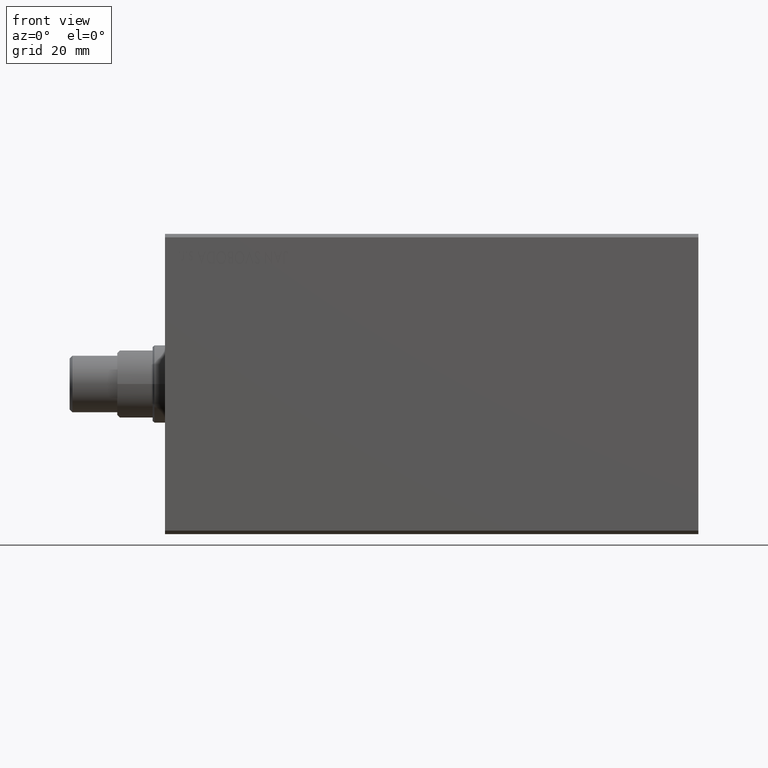
[diagram: clean part render]
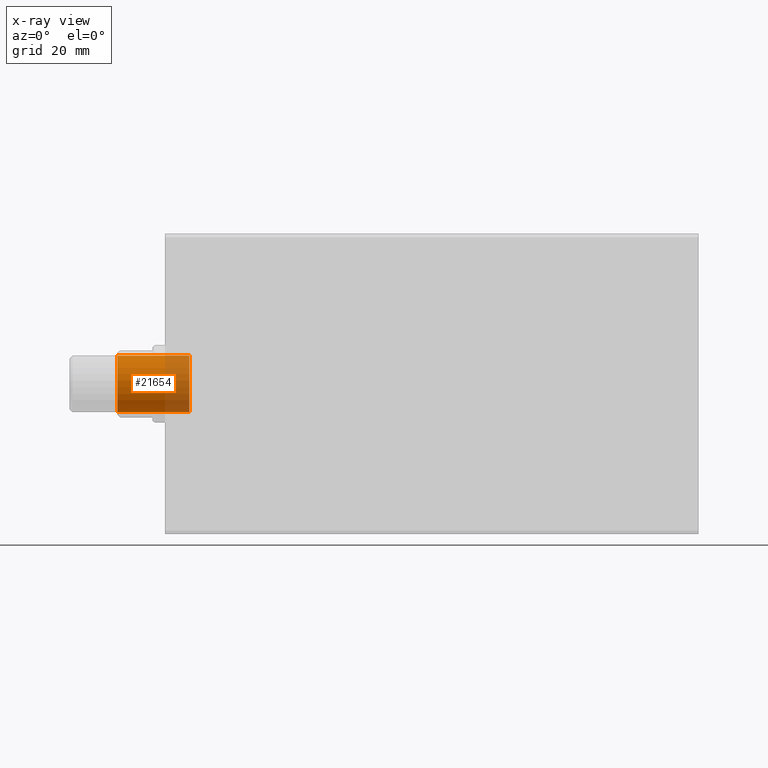
[diagram: x-ray — body ghosted, one internal face saturated and labeled with its STEP entity id]
A machine part, front view, then the same camera in x-ray: the body is ghosted and one INTERNAL B-rep face — a face not visible from any outside direction — is saturated and labeled: STEP entity #21654.
In plain terms, the highlighted cylindrical surface (edge-blend (fillet) strip) has radius 8 mm, axis along (-1, 0, 0).
Its self-contained STEP definition (entity closure, byte-faithful):
#2906 = AXIS2_PLACEMENT_3D ( 'NONE', #37748, #37084, #10085 ) ;
#3898 = VERTEX_POINT ( 'NONE', #8790 ) ;
#7623 = CARTESIAN_POINT ( 'NONE',  ( 8.000000000000000000, -2.276485067488053234E-14, 108.1000000000000085 ) ) ;
#8790 = CARTESIAN_POINT ( 'NONE',  ( 8.000000000000000000, -2.276485067488053234E-14, 128.5000000000000000 ) ) ;
#9157 = CARTESIAN_POINT ( 'NONE',  ( -8.000000000000000000, -2.178513323556264800E-14, 128.5000000000000000 ) ) ;
#9216 = VERTEX_POINT ( 'NONE', #7623 ) ;
#10085 = DIRECTION ( 'NONE',  ( 1.000000000000000000, 0.000000000000000000, 0.000000000000000000 ) ) ;
#10302 = CYLINDRICAL_SURFACE ( 'NONE', #2906, 8.000000000000000000 ) ;
#10676 = VECTOR ( 'NONE', #38870, 1000.000000000000000 ) ;
#10822 = CIRCLE ( 'NONE', #15871, 8.000000000000000000 ) ;
#11075 = DIRECTION ( 'NONE',  ( 0.000000000000000000, 0.000000000000000000, 1.000000000000000000 ) ) ;
#11185 = LINE ( 'NONE', #18831, #10676 ) ;
#12221 = AXIS2_PLACEMENT_3D ( 'NONE', #17641, #31368, #13150 ) ;
#13150 = DIRECTION ( 'NONE',  ( 1.000000000000000000, 0.000000000000000000, 0.000000000000000000 ) ) ;
#13172 = EDGE_CURVE ( 'NONE', #9216, #3898, #11185, .T. ) ;
#15871 = AXIS2_PLACEMENT_3D ( 'NONE', #20309, #11075, #35596 ) ;
#17641 = CARTESIAN_POINT ( 'NONE',  ( 0.000000000000000000, -2.276485067488053234E-14, 128.5000000000000000 ) ) ;
#17978 = CIRCLE ( 'NONE', #12221, 8.000000000000000000 ) ;
#18831 = CARTESIAN_POINT ( 'NONE',  ( 8.000000000000000000, -2.276485067488053234E-14, 108.1000000000000085 ) ) ;
#19919 = EDGE_CURVE ( 'NONE', #29638, #3898, #17978, .T. ) ;
#20309 = CARTESIAN_POINT ( 'NONE',  ( 0.000000000000000000, -2.276485067488053234E-14, 108.1000000000000085 ) ) ;
#21110 = ORIENTED_EDGE ( 'NONE', *, *, #43522, .F. ) ;
#21654 = ADVANCED_FACE ( 'NONE', ( #30106 ), #10302, .F. ) ;
#25430 = DIRECTION ( 'NONE',  ( -0.000000000000000000, -0.000000000000000000, 1.000000000000000000 ) ) ;
#29032 = LINE ( 'NONE', #42969, #43764 ) ;
#29638 = VERTEX_POINT ( 'NONE', #9157 ) ;
#30106 = FACE_OUTER_BOUND ( 'NONE', #34807, .T. ) ;
#31368 = DIRECTION ( 'NONE',  ( 0.000000000000000000, 0.000000000000000000, 1.000000000000000000 ) ) ;
#32305 = VERTEX_POINT ( 'NONE', #32818 ) ;
#32818 = CARTESIAN_POINT ( 'NONE',  ( -8.000000000000000000, -2.178513323556264800E-14, 108.1000000000000085 ) ) ;
#34807 = EDGE_LOOP ( 'NONE', ( #21110, #43225, #37176, #40712 ) ) ;
#35596 = DIRECTION ( 'NONE',  ( 1.000000000000000000, 0.000000000000000000, 0.000000000000000000 ) ) ;
#36090 = EDGE_CURVE ( 'NONE', #32305, #29638, #29032, .T. ) ;
#37084 = DIRECTION ( 'NONE',  ( -0.000000000000000000, -0.000000000000000000, 1.000000000000000000 ) ) ;
#37176 = ORIENTED_EDGE ( 'NONE', *, *, #19919, .T. ) ;
#37748 = CARTESIAN_POINT ( 'NONE',  ( 0.000000000000000000, -2.276485067488053234E-14, 108.1000000000000085 ) ) ;
#38870 = DIRECTION ( 'NONE',  ( -0.000000000000000000, -0.000000000000000000, 1.000000000000000000 ) ) ;
#40712 = ORIENTED_EDGE ( 'NONE', *, *, #13172, .F. ) ;
#42969 = CARTESIAN_POINT ( 'NONE',  ( -8.000000000000000000, -2.178513323556264800E-14, 108.1000000000000085 ) ) ;
#43225 = ORIENTED_EDGE ( 'NONE', *, *, #36090, .T. ) ;
#43522 = EDGE_CURVE ( 'NONE', #32305, #9216, #10822, .T. ) ;
#43764 = VECTOR ( 'NONE', #25430, 1000.000000000000000 ) ;